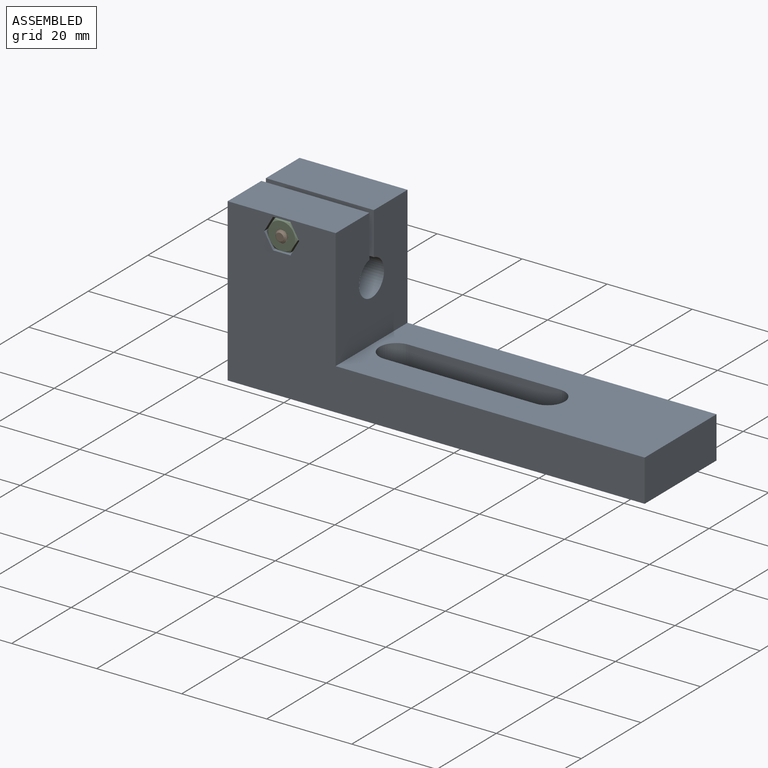
[diagram: assembled view]
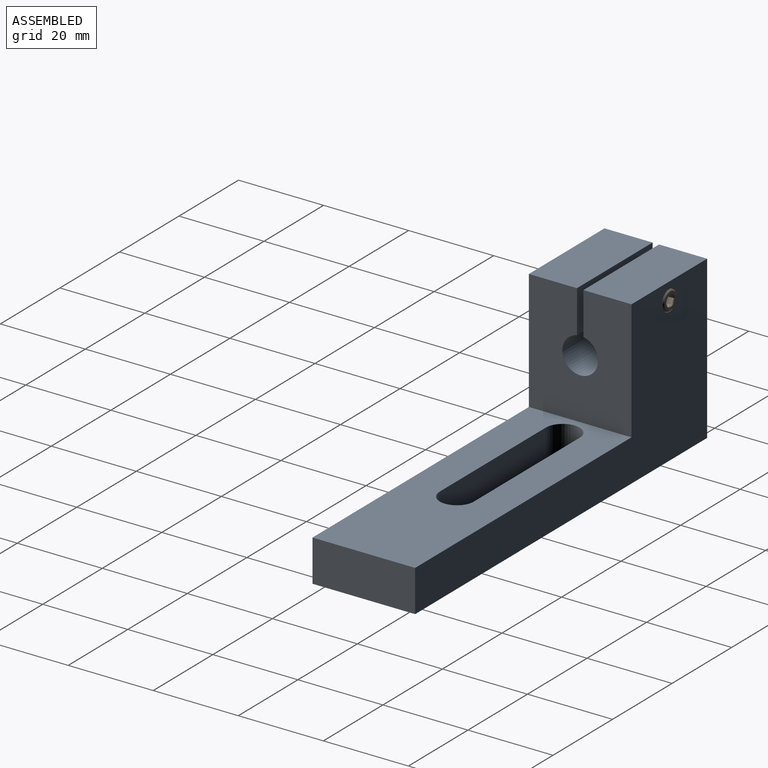
[diagram: assembled view, second angle]
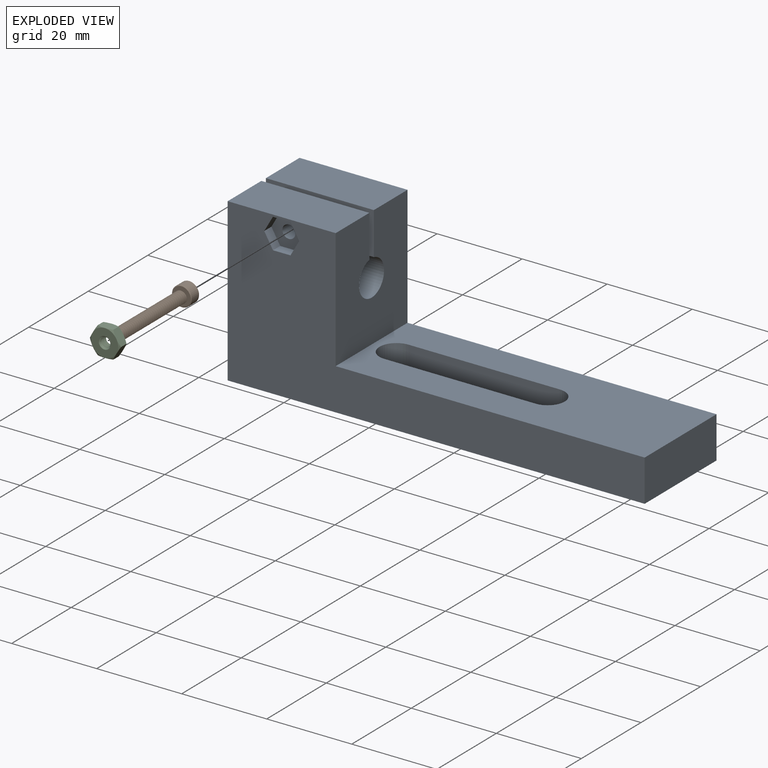
[diagram: exploded view]
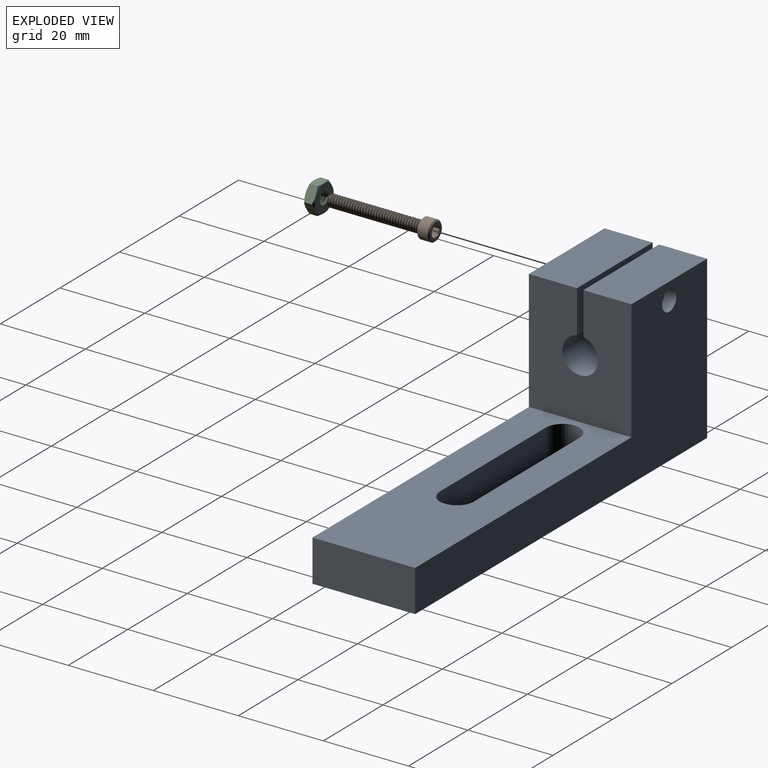
[diagram: exploded view, second angle]
ASSEMBLY  parts=3 mates=2
PART A: 27 faces, bbox 98.1x24.1x38.1 mm
  f0: plane 25.4x11.3mm, normal (0,0,1), area 287.1mm2, adj f1,f3,f11,f14
  f1: plane 28.27x24.13mm, normal (1,0,0), area 611.8mm2, adj f0,f3,f8,f9,f12,f13,f14,f15
  f2: plane 24.13x9.83mm, normal (1,0,0), area 237.2mm2, adj f3,f8,f9,f10
  f3: plane 98.07x38.1mm, normal (0,1,0), area 1663.8mm2, adj f0,f1,f2,f9,f10,f11,f26
  f4: cylinder r=4mm len=9.83mm, axis (0,0,-1), area 123.5mm2, adj f5,f7,f9,f10
  f5: plane 35.56x9.83mm, normal (0,-1,0), area 349.5mm2, adj f4,f6,f9,f10
  f6: cylinder r=4mm len=9.83mm, axis (0,0,-1), area 123.5mm2, adj f5,f7,f9,f10
  f7: plane 35.56x9.83mm, normal (0,1,0), area 349.5mm2, adj f4,f6,f9,f10
  f8: plane 98.07x38.1mm, normal (0,-1,0), area 1638.3mm2, adj f1,f2,f9,f10,f11,f12,f16,f17
  f9: plane 72.67x24.13mm, normal (0,0,1), area 1418.7mm2, adj f1,f2,f3,f4,f5,f6,f7,f8
  f10: plane 98.07x24.13mm, normal (0,0,-1), area 2031.6mm2, adj f2,f3,f4,f5,f6,f7,f8,f11
  f11: plane 38.1x24.13mm, normal (-1,0,0), area 849mm2, adj f0,f3,f8,f10,f12,f13,f14,f15
  f12: plane 25.4x11.3mm, normal (0,0,1), area 287.1mm2, adj f1,f8,f11,f15
  f13: cylinder r=4.19mm len=25.4mm, axis (1,0,0), area 629.9mm2, adj f1,f11,f14,f15
  f14: plane 25.4x10.01mm, normal (0,-1,0), area 247.1mm2, adj f0,f1,f11,f13,f24
  f15: plane 25.4x10.01mm, normal (0,1,0), area 247.1mm2, adj f1,f11,f12,f13,f23
  f16: plane 3.56x2.41mm, normal (-0.87,0,0.5), area 9.9mm2, adj f8,f17,f21,f22
  f17: plane 3.55x2.41mm, normal (-0.86,0,-0.5), area 9.9mm2, adj f8,f16,f18,f22
  f18: plane 4.11x2.41mm, normal (0,0,-1), area 9.9mm2, adj f8,f17,f19,f22
  f19: plane 3.56x2.41mm, normal (0.87,0,-0.5), area 9.9mm2, adj f8,f18,f20,f22
  f20: plane 3.55x2.41mm, normal (0.86,0,0.5), area 9.9mm2, adj f8,f19,f21,f22
  f21: plane 4.11x2.41mm, normal (0,0,1), area 9.9mm2, adj f8,f16,f20,f22
  f22: plane 8.21x7.12mm, normal (0,-1,0), area 36.5mm2, adj f16,f17,f18,f19,f20,f21,f23
  f23: cylinder r=1.52mm len=8.89mm, axis (0,1,0), area 85.1mm2, adj f15,f22
  f24: cylinder r=1.52mm len=8.46mm, axis (0,1,0), area 81mm2, adj f14,f25
  f25: plane 4.83x4.83mm, normal (0,1,0), area 11mm2, adj f24,f26
  f26: cylinder r=2.41mm len=4.83mm, axis (0,1,0), area 43.1mm2, adj f3,f25
PART B: 24 faces, bbox 5.2x25.8x5.2 mm
  f0: cylinder r=1.42mm len=21.75mm, axis (0,-1,0), area 6.7mm2, adj f1,f4,f5,f23
  f1: cone r=0.95mm half-angle=45deg, axis (0,1,0), area 2.7mm2, adj f0,f2,f3,f4,f23
  f2: cylinder r=1.01mm len=22.16mm, axis (0,1,0), area 64.8mm2, adj f1,f4,f5,f23
  f3: plane 1.89x1.89mm, normal (0,-1,0), area 2.8mm2, adj f1
  f4: bspline ~22.78x3.29mm, area 125.8mm2, adj f0,f1,f2,f5
  f5: plane 4.61x4.61mm, normal (0,-1,0), area 10.2mm2, adj f0,f2,f4,f6,f23
  f6: cone r=2.32mm half-angle=45deg, axis (0,1,0), area 2.8mm2, adj f5,f7
  f7: cylinder r=2.32mm len=4.65mm, axis (0,-1,0), area 35.3mm2, adj f6,f8
  f8: cone r=2.04mm half-angle=45deg, axis (0,-1,0), area 5.5mm2, adj f7,f9
  f9: plane 4.13x4.13mm, normal (0,1,0), area 7.1mm2, adj f8,f10,f18,f19,f20,f21,f22
  f10: cone r=1.37mm half-angle=45deg, axis (0,1,0), area 0mm2, adj f9,f11
  f11: plane 2.31x1.71mm, normal (-0.5,0,-0.87), area 2.3mm2, adj f10,f12,f16,f17
  f12: plane 2.75x2.38mm, normal (0,1,0), area 4.9mm2, adj f11,f13,f14,f15,f16,f17
  f13: plane 2.31x1.9mm, normal (1,0,0), area 2.3mm2, adj f12,f14,f17,f21
  f14: plane 2.31x1.71mm, normal (0.5,0,0.87), area 2.3mm2, adj f12,f13,f15,f20
  f15: plane 2.31x1.71mm, normal (-0.5,0,0.87), area 2.3mm2, adj f12,f14,f16,f19
  f16: plane 2.31x1.9mm, normal (-1,0,0), area 2.3mm2, adj f11,f12,f15,f18
  f17: plane 2.31x1.71mm, normal (0.5,0,-0.87), area 2.3mm2, adj f11,f12,f13,f22
  f18: cone r=1.37mm half-angle=45deg, axis (0,1,0), area 0mm2, adj f9,f16
  f19: cone r=1.37mm half-angle=45deg, axis (0,1,0), area 0mm2, adj f9,f15
  f20: cone r=1.37mm half-angle=45deg, axis (0,1,0), area 0mm2, adj f9,f14
  f21: cone r=1.37mm half-angle=45deg, axis (0,1,0), area 0mm2, adj f9,f13
  f22: cone r=1.37mm half-angle=45deg, axis (0,1,0), area 0mm2, adj f9,f17
  f23: bspline ~22.57x3.29mm, area 125.9mm2, adj f0,f1,f2,f5
PART C: 26 faces, bbox 7.6x7.6x3.2 mm
  f0: bspline ~3.29x2.85mm, area 11.5mm2, adj f1,f11,f12,f19
  f1: cylinder r=1.01mm len=2.02mm, axis (0,0,-1), area 1.2mm2, adj f0,f2,f12,f19
  f2: bspline ~3.29x2.85mm, area 11.4mm2, adj f1,f11,f12,f19
  f3: plane 6.35x6.35mm, normal (0,0,1), area 25.3mm2, adj f11,f12,f13,f14,f15,f16,f17,f18
  f4: plane 3.48x2.69mm, normal (-0.5,0.87,0), area 8mm2, adj f5,f9,f13,f18,f23,f24
  f5: plane 3.97x2.69mm, normal (-1,0,0), area 8mm2, adj f4,f6,f17,f18,f24,f25
  f6: plane 3.48x2.69mm, normal (-0.5,-0.87,0), area 8mm2, adj f5,f7,f16,f17,f20,f25
  f7: plane 3.48x2.69mm, normal (0.5,-0.87,0), area 8mm2, adj f6,f8,f15,f16,f20,f21
  f8: plane 3.97x2.69mm, normal (1,0,0), area 8mm2, adj f7,f9,f14,f15,f21,f22
  f9: plane 3.48x2.69mm, normal (0.5,0.87,0), area 8mm2, adj f4,f8,f13,f14,f22,f23
  f10: plane 6.35x6.35mm, normal (0,0,-1), area 25.3mm2, adj f11,f19,f20,f21,f22,f23,f24,f25
  f11: cylinder r=1.42mm len=2.85mm, axis (0,0,-1), area 3mm2, adj f0,f2,f3,f10
  f12: cone r=1.42mm half-angle=45deg, axis (0,0,1), area 2.3mm2, adj f0,f1,f2,f3
  f13: cone r=3.17mm half-angle=60deg, axis (0,0,-1), area 1mm2, adj f3,f4,f9
  f14: cone r=3.17mm half-angle=60deg, axis (0,0,-1), area 1mm2, adj f3,f8,f9
  f15: cone r=3.17mm half-angle=60deg, axis (0,0,-1), area 1mm2, adj f3,f7,f8
  f16: cone r=3.17mm half-angle=60deg, axis (0,0,-1), area 1mm2, adj f3,f6,f7
  f17: cone r=3.17mm half-angle=60deg, axis (0,0,-1), area 1mm2, adj f3,f5,f6
  f18: cone r=3.17mm half-angle=60deg, axis (0,0,-1), area 1mm2, adj f3,f4,f5
  f19: cone r=1.42mm half-angle=45deg, axis (0,0,-1), area 2.3mm2, adj f0,f1,f2,f10
  f20: cone r=3.17mm half-angle=60deg, axis (0,0,1), area 1mm2, adj f6,f7,f10
  f21: cone r=3.17mm half-angle=60deg, axis (0,0,1), area 1mm2, adj f7,f8,f10
  f22: cone r=3.17mm half-angle=60deg, axis (0,0,1), area 1mm2, adj f8,f9,f10
  f23: cone r=3.17mm half-angle=60deg, axis (0,0,1), area 1mm2, adj f4,f9,f10
  f24: cone r=3.17mm half-angle=60deg, axis (0,0,1), area 1mm2, adj f4,f5,f10
  f25: cone r=3.17mm half-angle=60deg, axis (0,0,1), area 1mm2, adj f5,f6,f10
PLACE A t=(36.37,31.3,-5.19)mm fixed
PLACE B rot(axis=(0,-1,0),91.1deg) t=(0.03,18.57,28.89)mm
PLACE C rot(axis=(0.58,-0.58,0.58),120deg) t=(0.03,20.42,28.89)mm
MATE slider C.f11 <-> A.f23  axis (0,-1,0) through (0.03,19.23,28.89)mm
MATE cylindrical B.f0 <-> A.f23  axis (0,1,0) through (0.03,40.94,28.89)mm
